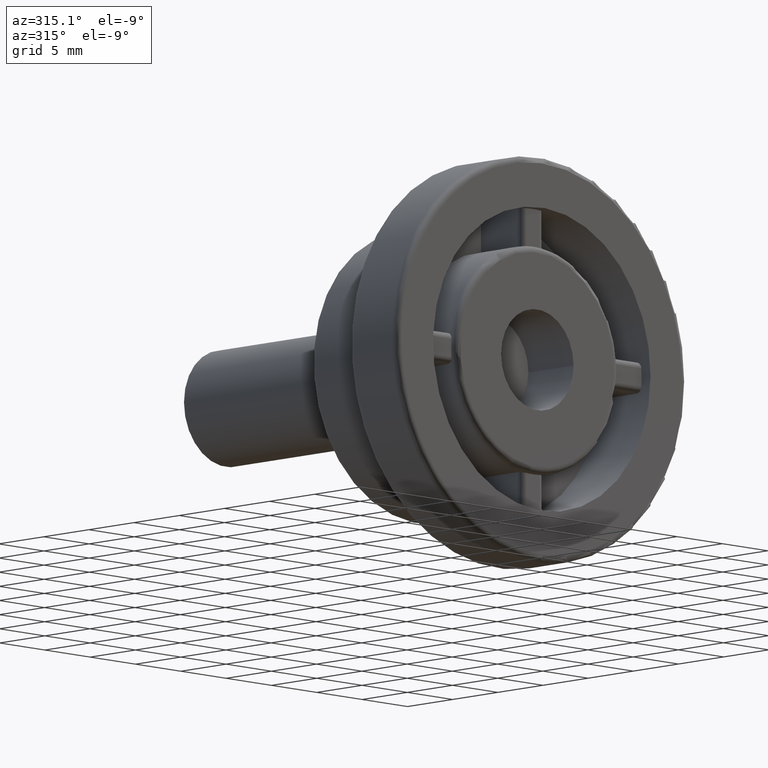
[diagram: clean part render]
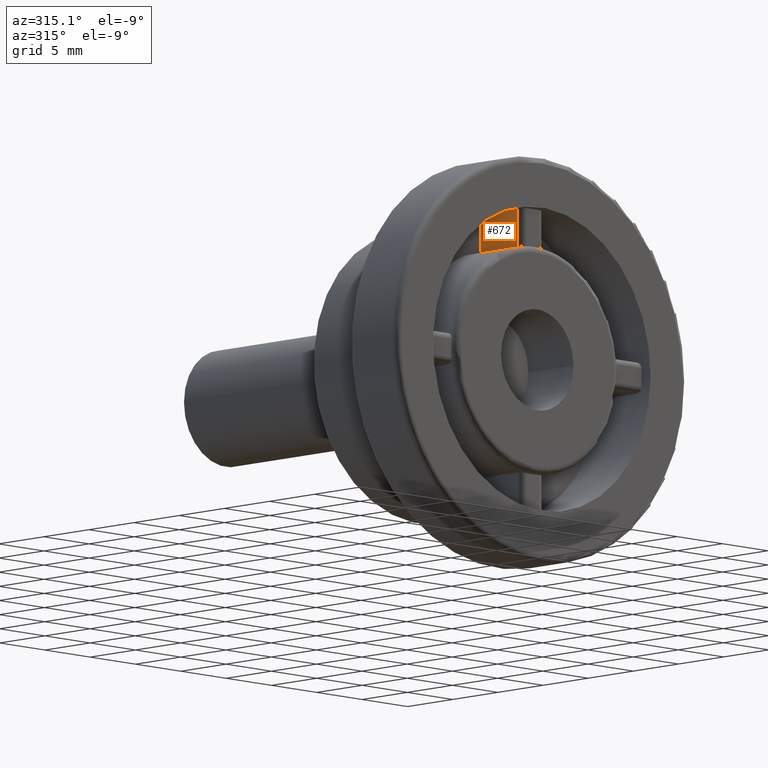
[diagram: same view with one face highlighted and labeled with its STEP entity id]
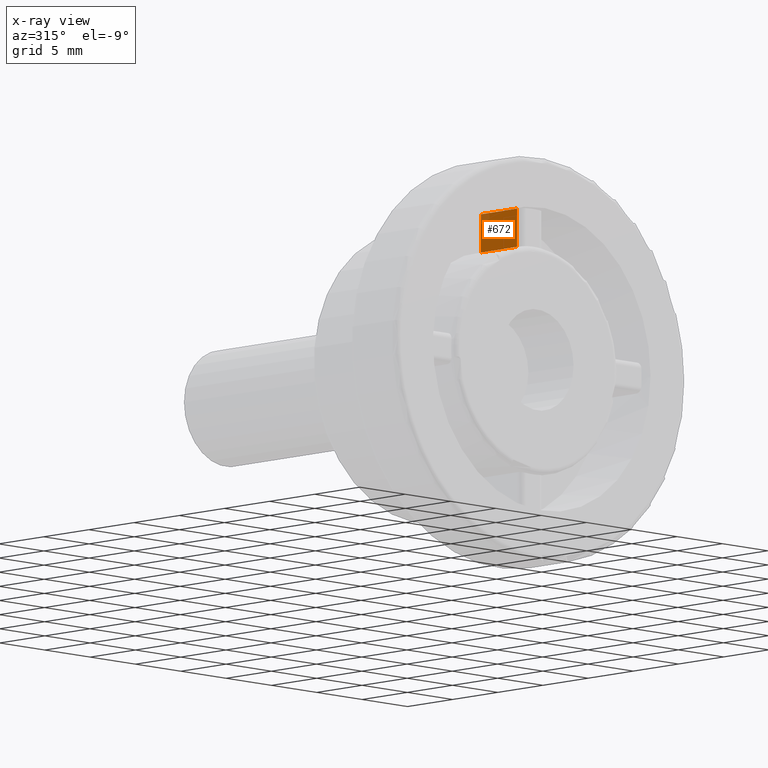
[diagram: x-ray of the same camera — body ghosted, the highlighted face saturated]
A machine part, auxiliary view. The second image highlights one B-rep face of the part: STEP entity #672.
The next image is the same camera in x-ray: the body ghosted, the highlighted face saturated — about 5% of this face is hidden behind the body in this view.
In plain terms, the highlighted planar face has unit normal (-1, 0, -0).
Its self-contained STEP definition (entity closure, byte-faithful):
#80=PLANE('',#720);
#110=FACE_OUTER_BOUND('',#156,.T.);
#156=EDGE_LOOP('',(#515,#516,#517,#518));
#239=LINE('',#1251,#279);
#240=LINE('',#1254,#280);
#241=LINE('',#1256,#281);
#242=LINE('',#1257,#282);
#279=VECTOR('',#855,3.02106800618036);
#280=VECTOR('',#858,4.);
#281=VECTOR('',#859,3.02106800618036);
#282=VECTOR('',#860,4.);
#341=VERTEX_POINT('',#1226);
#344=VERTEX_POINT('',#1240);
#345=VERTEX_POINT('',#1253);
#346=VERTEX_POINT('',#1255);
#415=EDGE_CURVE('',#344,#341,#239,.T.);
#416=EDGE_CURVE('',#345,#344,#240,.T.);
#417=EDGE_CURVE('',#346,#345,#241,.T.);
#418=EDGE_CURVE('',#341,#346,#242,.T.);
#515=ORIENTED_EDGE('',*,*,#415,.F.);
#516=ORIENTED_EDGE('',*,*,#416,.F.);
#517=ORIENTED_EDGE('',*,*,#417,.F.);
#518=ORIENTED_EDGE('',*,*,#418,.F.);
#672=ADVANCED_FACE('',(#110),#80,.T.);
#720=AXIS2_PLACEMENT_3D('',#1252,#856,#857);
#855=DIRECTION('',(2.93827960410459E-16,0.,-1.));
#856=DIRECTION('center_axis',(-1.,0.,-2.93827960410459E-16));
#857=DIRECTION('ref_axis',(2.88657986402541E-16,-8.88178419700125E-17,-1.));
#858=DIRECTION('',(0.,-1.,0.));
#859=DIRECTION('',(-2.93827960410459E-16,-1.86408323957909E-32,1.));
#860=DIRECTION('',(0.,1.,0.));
#1226=CARTESIAN_POINT('',(-1.225,1.5,8.91624220173499));
#1240=CARTESIAN_POINT('',(-1.225,1.5,11.9373102079154));
#1251=CARTESIAN_POINT('',(-1.225,1.5,11.6874059060103));
#1252=CARTESIAN_POINT('Origin',(-1.225,5.5,13.2625522431767));
#1253=CARTESIAN_POINT('',(-1.225,5.5,11.9373102079154));
#1254=CARTESIAN_POINT('',(-1.225,0.,11.9373102079154));
#1255=CARTESIAN_POINT('',(-1.225,5.5,8.91624220173499));
#1256=CARTESIAN_POINT('',(-1.225,5.5,6.63127612158834));
#1257=CARTESIAN_POINT('',(-1.225,0.,8.91624220173499));